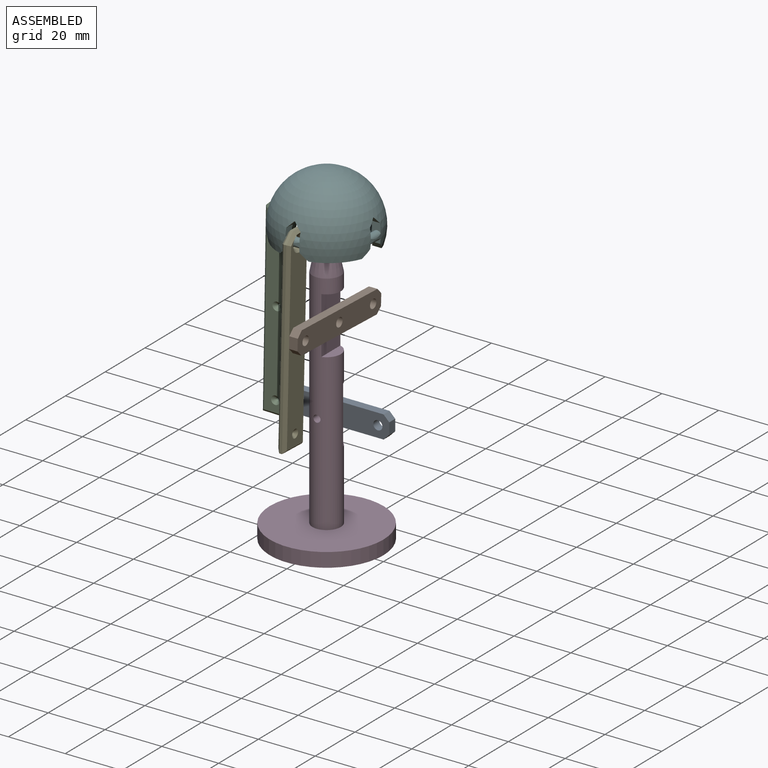
[diagram: assembled view]
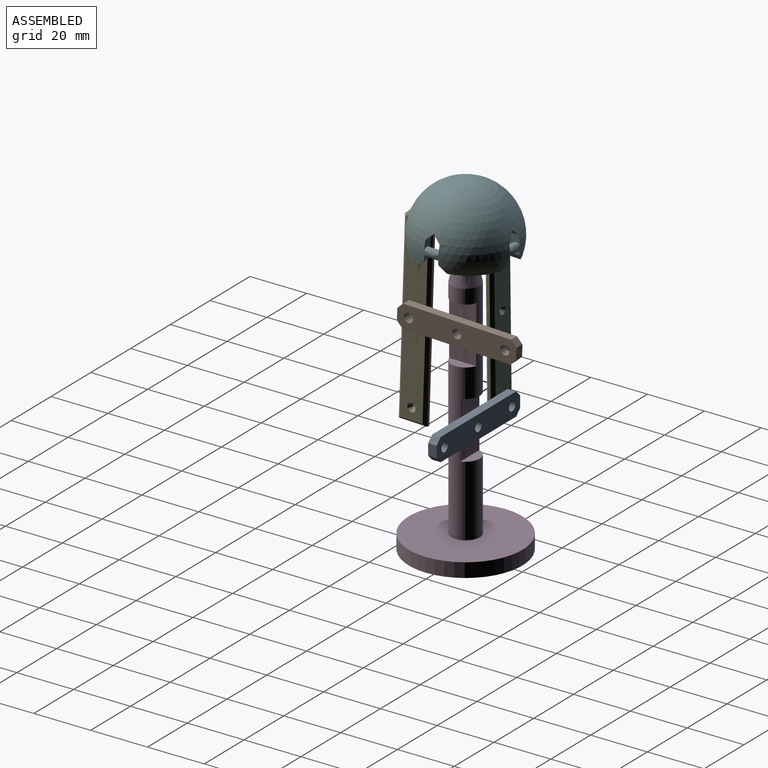
[diagram: assembled view, second angle]
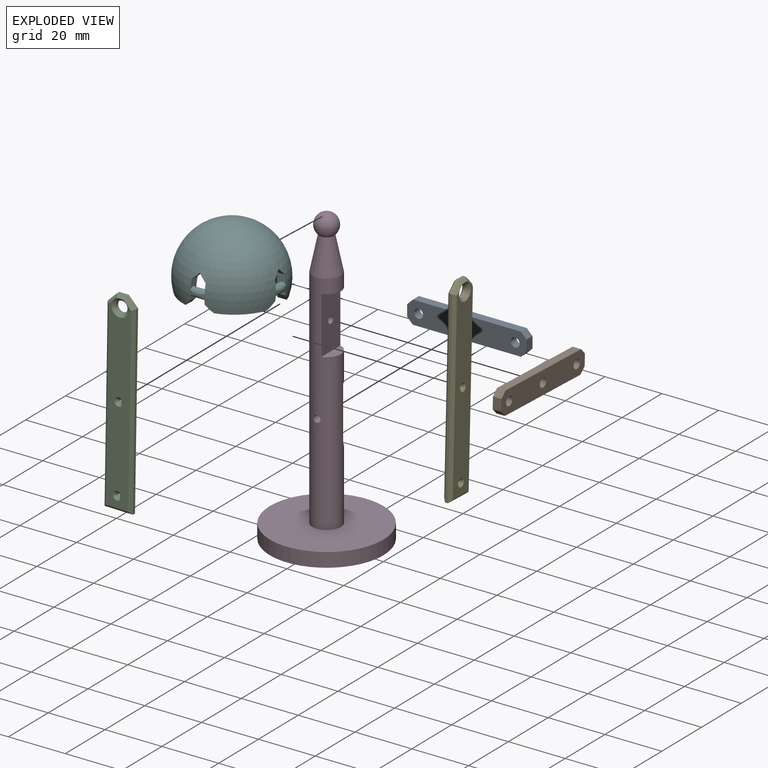
[diagram: exploded view]
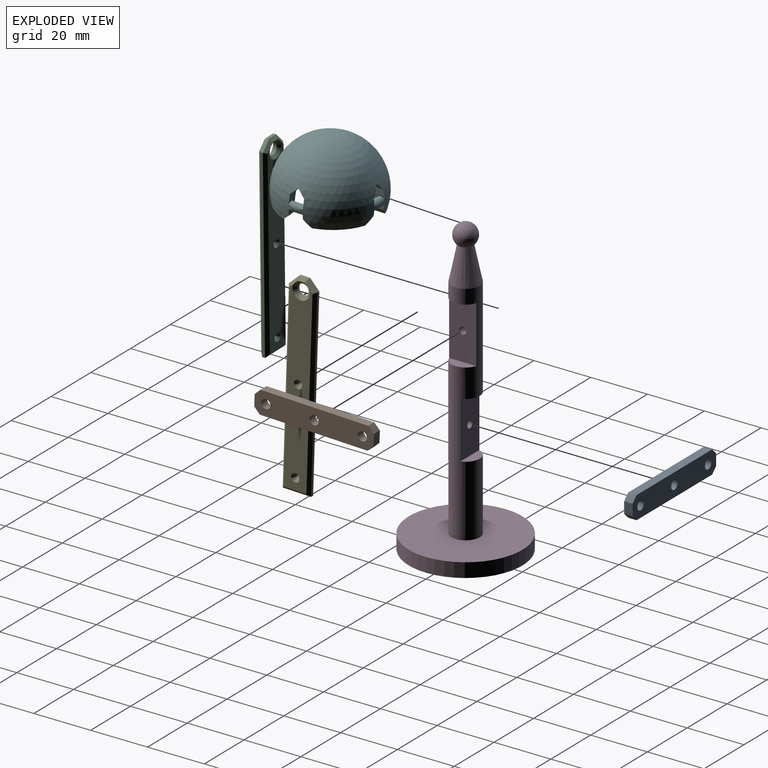
[diagram: exploded view, second angle]
ASSEMBLY  parts=6 mates=6
PART A: 13 faces, bbox 42x8x3 mm
  f0: plane 38x3mm, normal (0,1,0), area 114mm2, adj f7,f8,f9,f12
  f1: plane 4x3mm, normal (-1,0,0), area 12mm2, adj f7,f8,f11,f12
  f2: plane 38x3mm, normal (0,-1,0), area 114mm2, adj f7,f8,f10,f11
  f3: cylinder r=1.6mm len=3.2mm, axis (0,0,-1), area 30.2mm2, adj f7,f8
  f4: cylinder r=1.6mm len=3.2mm, axis (0,0,-1), area 30.2mm2, adj f7,f8
  f5: cylinder r=1.6mm len=3.2mm, axis (0,0,-1), area 30.2mm2, adj f7,f8
  f6: plane 4x3mm, normal (1,0,0), area 12mm2, adj f7,f8,f9,f10
  f7: plane 42x8mm, normal (0,0,1), area 303.9mm2, adj f0,f1,f2,f3,f4,f5,f6,f9
  f8: plane 42x8mm, normal (0,0,-1), area 303.9mm2, adj f0,f1,f2,f3,f4,f5,f6,f9
  f9: plane 3x2mm, normal (0.71,0.71,0), area 8.5mm2, adj f0,f6,f7,f8
  f10: plane 3x2mm, normal (0.71,-0.71,0), area 8.5mm2, adj f2,f6,f7,f8
  f11: plane 3x2mm, normal (-0.71,-0.71,0), area 8.5mm2, adj f1,f2,f7,f8
  f12: plane 3x2mm, normal (-0.71,0.71,0), area 8.5mm2, adj f0,f1,f7,f8
PART B: same geometry as A
PART C: 33 faces, bbox 69x3x10 mm
  f0: plane 2.12x0.88mm, normal (0,1,0), area 0.2mm2, adj f26,f28,f32
  f1: plane 2.12x0.88mm, normal (0,1,0), area 0.2mm2, adj f28,f30,f32
  f2: plane 2.12x0.88mm, normal (0,-1,0), area 0.2mm2, adj f19,f21,f23
  f3: plane 2.12x0.88mm, normal (0,-1,0), area 0.2mm2, adj f17,f19,f23
  f4: plane 3.34x3.34mm, normal (-0.71,0,-0.71), area 4.7mm2, adj f5,f11,f21,f30
  f5: plane 65.66x1mm, normal (0,0,-1), area 65.7mm2, adj f4,f6,f22,f31
  f6: plane 10x1mm, normal (1,0,0), area 10mm2, adj f5,f7,f20,f29
  f7: plane 65.66x1mm, normal (0,0,1), area 65.7mm2, adj f6,f8,f18,f27
  f8: plane 3.34x3.34mm, normal (-0.71,0,0.71), area 4.7mm2, adj f7,f11,f17,f26
  f9: cylinder r=0.5mm len=1mm, axis (0,1,0), area 3.1mm2, adj f16,f25
  f10: cylinder r=2mm len=4mm, axis (0,1,0), area 12.6mm2, adj f23,f32
  f11: plane 3.31x1mm, normal (-1,0,0), area 3.3mm2, adj f4,f8,f19,f28
  f12: cylinder r=0.5mm len=1mm, axis (0,1,0), area 3.1mm2, adj f15,f24
  f13: plane 66.12x8mm, normal (0,-1,0), area 485.6mm2, adj f15,f16,f17,f18,f20,f21,f22,f23
  f14: plane 66.12x8mm, normal (0,1,0), area 485.6mm2, adj f24,f25,f26,f27,f29,f30,f31,f32
  f15: cone r=0.5mm half-angle=45deg, axis (0,-1,0), area 8.9mm2, adj f12,f13
  f16: cone r=0.5mm half-angle=45deg, axis (0,-1,0), area 8.9mm2, adj f9,f13
  f17: plane 3.76x3.76mm, normal (-0.5,-0.71,0.5), area 6.1mm2, adj f3,f8,f13,f18,f19
  f18: plane 65.66x1mm, normal (0,-0.71,0.71), area 91.9mm2, adj f7,f13,f17,f20
  f19: plane 3.31x1mm, normal (-0.71,-0.71,0), area 4.1mm2, adj f2,f3,f11,f17,f21
  f20: plane 10x1mm, normal (0.71,-0.71,0), area 12.7mm2, adj f6,f13,f18,f22
  f21: plane 3.76x3.76mm, normal (-0.5,-0.71,-0.5), area 6.1mm2, adj f2,f4,f13,f19,f22
  f22: plane 65.66x1mm, normal (0,-0.71,-0.71), area 91.9mm2, adj f5,f13,f20,f21
  f23: cone r=2mm half-angle=45deg, axis (0,-1,0), area 22.2mm2, adj f2,f3,f10,f13
  f24: cone r=1.5mm half-angle=45deg, axis (0,1,0), area 8.9mm2, adj f12,f14
  f25: cone r=1.5mm half-angle=45deg, axis (0,1,0), area 8.9mm2, adj f9,f14
  f26: plane 3.76x3.76mm, normal (-0.5,0.71,0.5), area 6.1mm2, adj f0,f8,f14,f27,f28
  f27: plane 65.66x1mm, normal (0,0.71,0.71), area 91.9mm2, adj f7,f14,f26,f29
  f28: plane 3.31x1mm, normal (-0.71,0.71,0), area 4.1mm2, adj f0,f1,f11,f26,f30
  f29: plane 10x1mm, normal (0.71,0.71,0), area 12.7mm2, adj f6,f14,f27,f31
  f30: plane 3.76x3.76mm, normal (-0.5,0.71,-0.5), area 6.1mm2, adj f1,f4,f14,f28,f31
  f31: plane 65.66x1mm, normal (0,0.71,-0.71), area 91.9mm2, adj f5,f14,f29,f30
  f32: cone r=3mm half-angle=45deg, axis (0,1,0), area 22.2mm2, adj f0,f1,f10,f14
PART D: 14 faces, bbox 40x40x103.9 mm
  f0: cylinder r=5mm len=80mm, axis (0,0,1), area 1996.9mm2, adj f1,f5,f6,f7,f8,f9,f10,f11
  f1: cone r=2.5mm half-angle=11.8deg, axis (0,0,-1), area 289mm2, adj f0,f2
  f2: sphere r=3.9mm, area 168.9mm2, adj f1
  f3: plane 40x40mm, normal (0,0,-1), area 1256.6mm2, adj f4
  f4: cylinder r=20mm len=40mm, axis (0,0,1), area 628.3mm2, adj f3,f5
  f5: plane 40x40mm, normal (0,0,1), area 1178.1mm2, adj f0,f4
  f6: plane 9.54x3.5mm, normal (0,0,-1), area 24.5mm2, adj f0,f7
  f7: plane 20x9.54mm, normal (1,0,0), area 185.9mm2, adj f0,f6,f8,f13
  f8: plane 9.54x3.5mm, normal (0,0,1), area 24.5mm2, adj f0,f7
  f9: plane 9.54x3.5mm, normal (0,0,-1), area 24.5mm2, adj f0,f10
  f10: plane 20x9.54mm, normal (0,1,0), area 185.9mm2, adj f0,f9,f11,f12
  f11: plane 9.54x3.5mm, normal (0,0,1), area 24.5mm2, adj f0,f10
  f12: cylinder r=1.25mm len=6.5mm, axis (0,1,0), area 50.4mm2, adj f0,f10
  f13: cylinder r=1.25mm len=6.5mm, axis (1,0,0), area 50.4mm2, adj f0,f7
PART E: 33 faces, bbox 3x69x10 mm
  f0: plane 2.12x0.88mm, normal (1,0,0), area 0.2mm2, adj f26,f28,f32
  f1: plane 2.12x0.88mm, normal (1,0,0), area 0.2mm2, adj f28,f30,f32
  f2: plane 2.12x0.88mm, normal (-1,0,0), area 0.2mm2, adj f19,f21,f23
  f3: plane 2.12x0.88mm, normal (-1,0,0), area 0.2mm2, adj f17,f19,f23
  f4: plane 3.34x3.34mm, normal (0,0.71,-0.71), area 4.7mm2, adj f5,f11,f21,f30
  f5: plane 65.66x1mm, normal (0,0,-1), area 65.7mm2, adj f4,f6,f22,f31
  f6: plane 10x1mm, normal (0,-1,0), area 10mm2, adj f5,f7,f20,f29
  f7: plane 65.66x1mm, normal (0,0,1), area 65.7mm2, adj f6,f8,f18,f27
  f8: plane 3.34x3.34mm, normal (0,0.71,0.71), area 4.7mm2, adj f7,f11,f17,f26
  f9: cylinder r=0.5mm len=1mm, axis (1,0,0), area 3.1mm2, adj f16,f25
  f10: cylinder r=2mm len=4mm, axis (1,0,0), area 12.6mm2, adj f23,f32
  f11: plane 3.31x1mm, normal (0,1,0), area 3.3mm2, adj f4,f8,f19,f28
  f12: cylinder r=0.5mm len=1mm, axis (1,0,0), area 3.1mm2, adj f15,f24
  f13: plane 66.12x8mm, normal (-1,0,0), area 485.6mm2, adj f15,f16,f17,f18,f20,f21,f22,f23
  f14: plane 66.12x8mm, normal (1,0,0), area 485.6mm2, adj f24,f25,f26,f27,f29,f30,f31,f32
  f15: cone r=0.5mm half-angle=45deg, axis (-1,0,0), area 8.9mm2, adj f12,f13
  f16: cone r=0.5mm half-angle=45deg, axis (-1,0,0), area 8.9mm2, adj f9,f13
  f17: plane 3.76x3.76mm, normal (-0.71,0.5,0.5), area 6.1mm2, adj f3,f8,f13,f18,f19
  f18: plane 65.66x1mm, normal (-0.71,0,0.71), area 91.9mm2, adj f7,f13,f17,f20
  f19: plane 3.31x1mm, normal (-0.71,0.71,0), area 4.1mm2, adj f2,f3,f11,f17,f21
  f20: plane 10x1mm, normal (-0.71,-0.71,0), area 12.7mm2, adj f6,f13,f18,f22
  f21: plane 3.76x3.76mm, normal (-0.71,0.5,-0.5), area 6.1mm2, adj f2,f4,f13,f19,f22
  f22: plane 65.66x1mm, normal (-0.71,0,-0.71), area 91.9mm2, adj f5,f13,f20,f21
  f23: cone r=2mm half-angle=45deg, axis (-1,0,0), area 22.2mm2, adj f2,f3,f10,f13
  f24: cone r=1.5mm half-angle=45deg, axis (1,0,0), area 8.9mm2, adj f12,f14
  f25: cone r=1.5mm half-angle=45deg, axis (1,0,0), area 8.9mm2, adj f9,f14
  f26: plane 3.76x3.76mm, normal (0.71,0.5,0.5), area 6.1mm2, adj f0,f8,f14,f27,f28
  f27: plane 65.66x1mm, normal (0.71,0,0.71), area 91.9mm2, adj f7,f14,f26,f29
  f28: plane 3.31x1mm, normal (0.71,0.71,0), area 4.1mm2, adj f0,f1,f11,f26,f30
  f29: plane 10x1mm, normal (0.71,-0.71,0), area 12.7mm2, adj f6,f14,f27,f31
  f30: plane 3.76x3.76mm, normal (0.71,0.5,-0.5), area 6.1mm2, adj f1,f4,f14,f28,f31
  f31: plane 65.66x1mm, normal (0.71,0,-0.71), area 91.9mm2, adj f5,f14,f29,f30
  f32: cone r=3mm half-angle=45deg, axis (1,0,0), area 22.2mm2, adj f0,f1,f10,f14
PART F: 42 faces, bbox 35x35x22.5 mm
  f0: plane 11.01x11.01mm, normal (0,0,-1), area 43.2mm2, adj f4,f11,f24,f25
  f1: plane 3.92x2.53mm, normal (0.71,0,-0.71), area 11.3mm2, adj f2,f7,f24,f25
  f2: plane 3.92x2.53mm, normal (-0.71,0,-0.71), area 11.3mm2, adj f1,f6,f24,f25
  f3: plane 4.53x2.55mm, normal (-0.71,0,-0.71), area 11.3mm2, adj f6,f24,f25,f26
  f4: plane 4.53x2.55mm, normal (0.71,0,-0.71), area 11.3mm2, adj f0,f7,f24,f25
  f5: cylinder r=1.5mm len=5mm, axis (1,0,0), area 43.3mm2, adj f6,f7,f25
  f6: plane 6.52x3.62mm, normal (-1,0,0), area 13mm2, adj f2,f3,f5,f24,f25
  f7: plane 6.52x3.62mm, normal (1,0,0), area 13mm2, adj f1,f4,f5,f24,f25
  f8: plane 11.01x11.01mm, normal (0,0,-1), area 43.2mm2, adj f12,f19,f24,f25
  f9: plane 3.92x2.53mm, normal (0,0.71,-0.71), area 11.3mm2, adj f10,f15,f24,f25
  f10: plane 3.92x2.53mm, normal (0,-0.71,-0.71), area 11.3mm2, adj f9,f14,f24,f25
  f11: plane 4.53x2.55mm, normal (0,-0.71,-0.71), area 11.3mm2, adj f0,f14,f24,f25
  f12: plane 4.53x2.55mm, normal (0,0.71,-0.71), area 11.3mm2, adj f8,f15,f24,f25
  f13: cylinder r=1.5mm len=5mm, axis (0,1,0), area 43.3mm2, adj f14,f15,f25
  f14: plane 6.52x3.62mm, normal (0,-1,0), area 13mm2, adj f10,f11,f13,f24,f25
  f15: plane 6.52x3.62mm, normal (0,1,0), area 13mm2, adj f9,f12,f13,f24,f25
  f16: plane 11.01x11.01mm, normal (0,0,-1), area 43.2mm2, adj f20,f24,f25,f39
  f17: plane 3.92x2.53mm, normal (-0.71,0,-0.71), area 11.3mm2, adj f18,f23,f24,f25
  f18: plane 3.92x2.53mm, normal (0.71,0,-0.71), area 11.3mm2, adj f17,f22,f24,f25
  f19: plane 4.53x2.55mm, normal (0.71,0,-0.71), area 11.3mm2, adj f8,f22,f24,f25
  f20: plane 4.53x2.55mm, normal (-0.71,0,-0.71), area 11.3mm2, adj f16,f23,f24,f25
  f21: cylinder r=1.5mm len=5mm, axis (-1,0,0), area 43.3mm2, adj f22,f23,f25
  f22: plane 6.52x3.62mm, normal (1,0,0), area 13mm2, adj f18,f19,f21,f24,f25
  f23: plane 6.52x3.62mm, normal (-1,0,0), area 13mm2, adj f17,f20,f21,f24,f25
  f24: sphere r=14.5mm, area 1229.9mm2, adj f0,f1,f2,f3,f4,f6,f7,f8
  f25: sphere r=17.5mm, area 2253.1mm2, adj f0,f1,f2,f3,f4,f5,f6,f7
  f26: plane 11.01x11.01mm, normal (0,0,-1), area 43.2mm2, adj f3,f24,f25,f38
  f27: cone r=2mm half-angle=30deg, axis (0,0,-1), area 25.1mm2, adj f28
  f28: cylinder r=2mm len=7.34mm, axis (0,0,1), area 92.3mm2, adj f27,f29
  f29: sphere r=4.2mm, area 149.9mm2, adj f28,f30
  f30: cone r=5.2mm half-angle=26.5deg, axis (0,0,-1), area 94.1mm2, adj f29,f31
  f31: plane 12.4x12.4mm, normal (0,0,-1), area 35.8mm2, adj f30,f32
  f32: cylinder r=6.2mm len=12.4mm, axis (0,0,1), area 194.8mm2, adj f31,f33
  f33: sphere r=6.2mm, area 185mm2, adj f32,f34
  f34: cone r=3.99mm half-angle=40deg, axis (0,0,1), area 346.9mm2, adj f24,f33
  f35: cylinder r=1.5mm len=5mm, axis (0,-1,0), area 43.3mm2, adj f25,f36,f37
  f36: plane 6.52x3.62mm, normal (0,-1,0), area 13mm2, adj f24,f25,f35,f38,f40
  f37: plane 6.52x3.62mm, normal (0,1,0), area 13mm2, adj f24,f25,f35,f39,f41
  f38: plane 4.53x2.55mm, normal (0,-0.71,-0.71), area 11.3mm2, adj f24,f25,f26,f36
  f39: plane 4.53x2.55mm, normal (0,0.71,-0.71), area 11.3mm2, adj f16,f24,f25,f37
  f40: plane 3.89x2.5mm, normal (0,-0.71,-0.71), area 11.3mm2, adj f24,f25,f36,f41
  f41: plane 3.89x2.5mm, normal (0,0.71,-0.71), area 11.3mm2, adj f24,f25,f37,f40
PLACE A rot(axis=(0,-0.71,0.71),180deg) t=(0,3,-60)mm
PLACE B rot(axis=(0.57,-0.59,-0.57),118.8deg) t=(3,0,-30)mm
PLACE C rot(axis=(0.7,0,-0.71),180deg) t=(-15.73,0,16)mm
PLACE D at identity fixed
PLACE E rot(axis=(1,0,0),88.1deg) t=(0,-15.46,16.58)mm
PLACE F rot(axis=(0,0.02,1),180deg) t=(0,0,0)mm
MATE revolute A.f4 <-> C.f12  axis (0,-1,0) through (-17,1.5,-59.99)mm
MATE ball F.f5 <-> E.f23  axis (-1,0,0) through (0,-15.99,0.59)mm
MATE revolute D.f12 <-> A.f3  axis (0,1,0) through (0,1.5,-60)mm
MATE revolute E.f25 <-> B.f4  axis (1,0,0) through (1.5,-16.99,-29.39)mm
MATE ball F.f35 <-> C.f10  axis (0,1,-0.04) through (-16,0,0)mm
MATE revolute D.f13 <-> B.f3  axis (1,0,0) through (1.5,0,-30)mm
